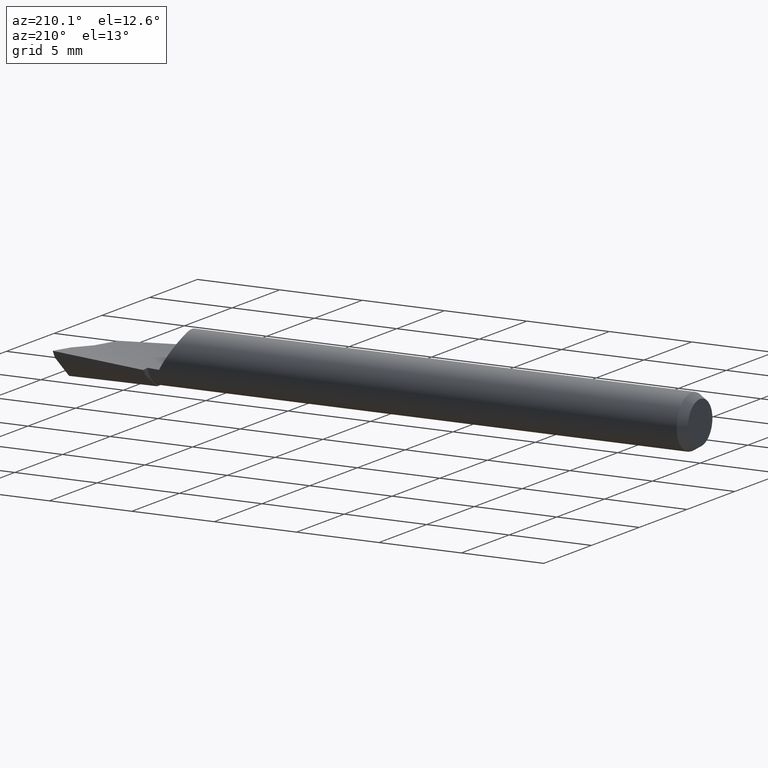
[diagram: clean part render]
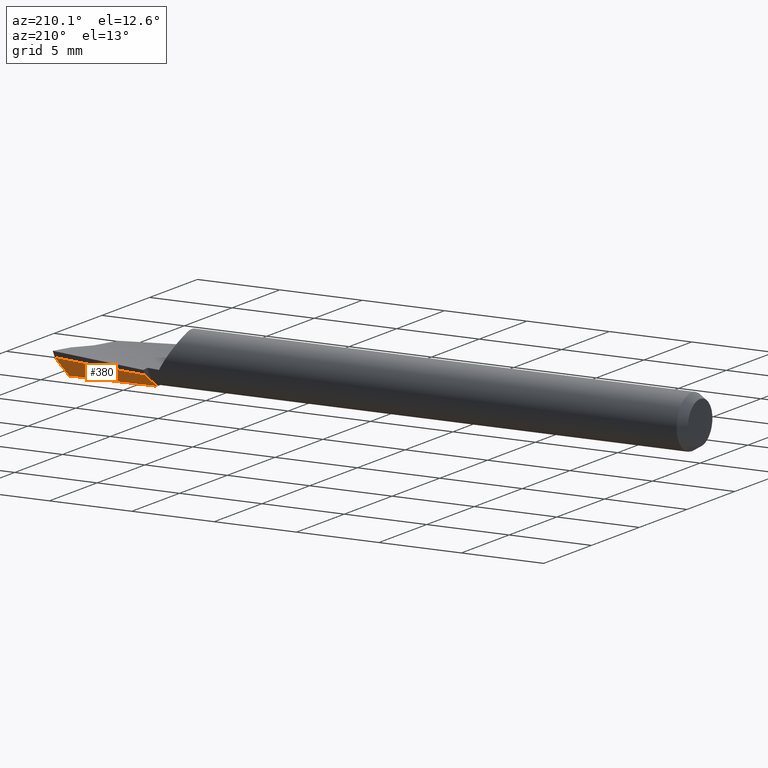
[diagram: same view with one face highlighted and labeled with its STEP entity id]
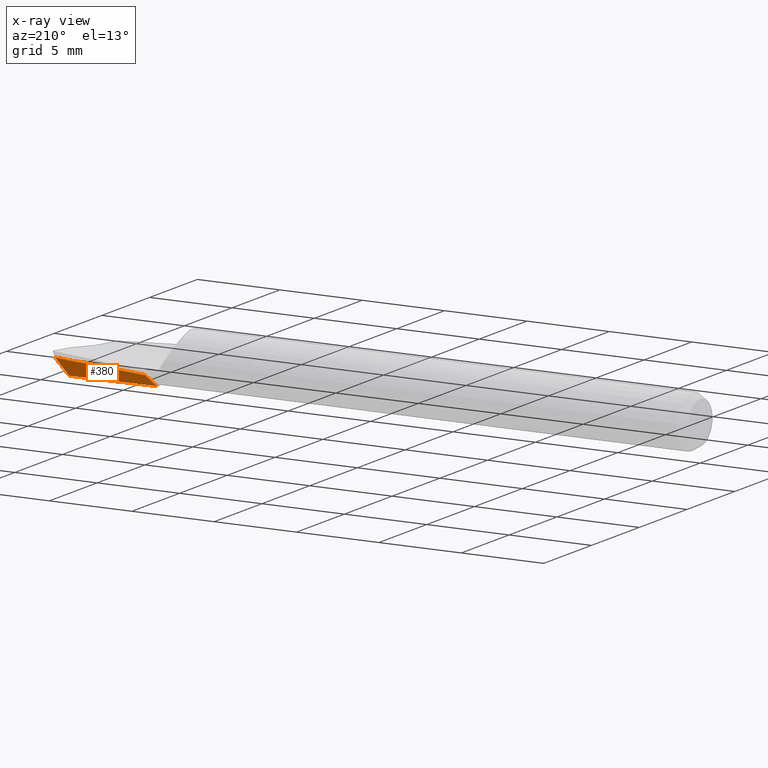
[diagram: x-ray of the same camera — body ghosted, the highlighted face saturated]
A machine part, auxiliary view. The second image highlights one B-rep face of the part: STEP entity #380.
The next image is the same camera in x-ray: the body ghosted, the highlighted face saturated — about 0% of this face is hidden behind the body in this view.
In plain terms, the highlighted face is a freeform B-spline surface patch.
Its self-contained STEP definition (entity closure, byte-faithful):
#35 = CARTESIAN_POINT ( 'NONE',  ( 1.492789826213970494, 0.03446688642667204011, -0.05544825501628470460 ) ) ;
#46 = CARTESIAN_POINT ( 'NONE',  ( 1.496935170095070156, 0.06623259381584792327, -0.02394607398065381684 ) ) ;
#51 = CARTESIAN_POINT ( 'NONE',  ( 1.495779368635660633, 0.05742269355516698565, -0.03273282644151234017 ) ) ;
#59 =( BOUNDED_CURVE ( )  B_SPLINE_CURVE ( 2, ( #408, #542, #575 ),
 .UNSPECIFIED., .F., .T. ) 
 B_SPLINE_CURVE_WITH_KNOTS ( ( 3, 3 ),
 ( 0.002800474881260479800, 0.3117378289616571374 ),
 .UNSPECIFIED. ) 
 CURVE ( )  GEOMETRIC_REPRESENTATION_ITEM ( )  RATIONAL_B_SPLINE_CURVE ( ( 0.9998628584775868244, 0.9923410090708106868, 0.9942195832789442189 ) ) 
 REPRESENTATION_ITEM ( '' )  );
#64 = CARTESIAN_POINT ( 'NONE',  ( 0.9833333333333347248, 0.06080022152004209424, -0.04802400282978503548 ) ) ;
#76 = CARTESIAN_POINT ( 'NONE',  ( 1.353962018214266427, 0.02314617646180156321, -0.06239999999999999020 ) ) ;
#96 = VERTEX_POINT ( 'NONE', #474 ) ;
#98 = CARTESIAN_POINT ( 'NONE',  ( 1.155555555555556557, -0.04100383446170217938, -0.09234900009826521594 ) ) ;
#101 = CARTESIAN_POINT ( 'NONE',  ( 1.500000000000000222, 0.07504044648600706469, -0.01500000000000001506 ) ) ;
#109 = CARTESIAN_POINT ( 'NONE',  ( 1.285000000000000142, 0.02122393214403914263, -0.06239999999999997632 ) ) ;
#121 = CARTESIAN_POINT ( 'NONE',  ( 1.422920425044222226, 0.02518942847711788668, -0.06239999999999997632 ) ) ;
#142 = FACE_OUTER_BOUND ( 'NONE', #543, .T. ) ;
#148 = CARTESIAN_POINT ( 'NONE',  ( 1.155555555555556557, 0.06673245070059055650, -0.03745462097408729790 ) ) ;
#200 = EDGE_CURVE ( 'NONE', #96, #402, #59, .T. ) ;
#212 = CARTESIAN_POINT ( 'NONE',  ( 1.491874392833614227, 0.02738142070716441737, -0.06239999999999999020 ) ) ;
#217 = EDGE_CURVE ( 'NONE', #232, #96, #287, .T. ) ;
#224 = ORIENTED_EDGE ( 'NONE', *, *, #217, .F. ) ;
#232 = VERTEX_POINT ( 'NONE', #531 ) ;
#240 = B_SPLINE_CURVE_WITH_KNOTS ( 'NONE', 3,
 ( #263, #76, #121, #212 ),
 .UNSPECIFIED., .F., .F.,
 ( 4, 4 ),
 ( 0.000000000000000000, 0.005256936623784464434 ),
 .UNSPECIFIED. ) ;
#247 = CARTESIAN_POINT ( 'NONE',  ( 1.327777777777777946, -0.02637718976660789749, -0.09884336947064184531 ) ) ;
#261 = VERTEX_POINT ( 'NONE', #534 ) ;
#263 = CARTESIAN_POINT ( 'NONE',  ( 1.285000000000000142, 0.02122393214403914263, -0.06239999999999997632 ) ) ;
#285 = CARTESIAN_POINT ( 'NONE',  ( 0.9833333333333347248, -0.05563047915679646127, -0.08585463072588858657 ) ) ;
#287 = B_SPLINE_CURVE_WITH_KNOTS ( 'NONE', 3,
 ( #493, #35, #315, #460, #51, #46, #496 ),
 .UNSPECIFIED., .F., .F.,
 ( 4, 3, 4 ),
 ( 1.779478444136748701E-05, 0.0007773853438262711768, 0.001729594564419842341 ),
 .UNSPECIFIED. ) ;
#315 = CARTESIAN_POINT ( 'NONE',  ( 1.493707277637140951, 0.04153478646506825883, -0.04847882659177697728 ) ) ;
#321 = EDGE_CURVE ( 'NONE', #261, #402, #519, .T. ) ;
#368 = CARTESIAN_POINT ( 'NONE',  ( 1.500000000000000222, -0.01045955351399199991, -0.1005000000000000060 ) ) ;
#380 = ADVANCED_FACE ( 'NONE', ( #142 ), #446, .T. ) ;
#402 = VERTEX_POINT ( 'NONE', #464 ) ;
#408 = CARTESIAN_POINT ( 'NONE',  ( 1.498094141416539626, 0.07501404401408366673, -0.01513148404725747284 ) ) ;
#415 = CARTESIAN_POINT ( 'NONE',  ( 0.8111111111111127814, 0.05189221768827641246, -0.05624292268554171442 ) ) ;
#425 = CARTESIAN_POINT ( 'NONE',  ( 1.327777777777777946, 0.07266467988113900489, -0.02688523911838956032 ) ) ;
#434 = ORIENTED_EDGE ( 'NONE', *, *, #200, .F. ) ;
#446 =( BOUNDED_SURFACE ( )  B_SPLINE_SURFACE ( 1, 2, ( 
 ( #101, #425, #148, #64, #415 ),
 ( #368, #247, #98, #285, #462 ) ),
 .UNSPECIFIED., .F., .F., .F. ) 
 B_SPLINE_SURFACE_WITH_KNOTS ( ( 2, 2 ),
 ( 3, 2, 3 ),
 ( 0.000000000000000000, 1.000000000000000000 ),
 ( 0.000000000000000000, 0.5000000000000000000, 1.000000000000000000 ),
 .UNSPECIFIED. ) 
 GEOMETRIC_REPRESENTATION_ITEM ( )  RATIONAL_B_SPLINE_SURFACE ( (
 ( 1.000000000000000000, 0.9876883405951377704, 1.000000000000000000, 0.9876883405951377704, 1.000000000000000000),
 ( 1.000000000000000000, 0.9876883405951377704, 1.000000000000000000, 0.9876883405951377704, 1.000000000000000000) ) ) 
 REPRESENTATION_ITEM ( '' )  SURFACE ( )  );
#460 = CARTESIAN_POINT ( 'NONE',  ( 1.494626743970264737, 0.04858486085059612880, -0.04149172176391202616 ) ) ;
#462 = CARTESIAN_POINT ( 'NONE',  ( 0.8111111111111127814, -0.06753437440178729212, -0.07515823663359380569 ) ) ;
#464 = CARTESIAN_POINT ( 'NONE',  ( 1.285000000000000142, 0.07068405749360198720, -0.02932290273933428962 ) ) ;
#474 = CARTESIAN_POINT ( 'NONE',  ( 1.498094141416539626, 0.07501404401408366673, -0.01513148404725747284 ) ) ;
#493 = CARTESIAN_POINT ( 'NONE',  ( 1.491874392833614227, 0.02738142070716441737, -0.06239999999999999020 ) ) ;
#496 = CARTESIAN_POINT ( 'NONE',  ( 1.498094141416539626, 0.07501404401408366673, -0.01513148404725747284 ) ) ;
#509 = CARTESIAN_POINT ( 'NONE',  ( 1.285000000000000142, 0.07068405749360198720, -0.02932290273933428962 ) ) ;
#513 = ORIENTED_EDGE ( 'NONE', *, *, #321, .T. ) ;
#519 =( BOUNDED_CURVE ( )  B_SPLINE_CURVE ( 1, ( #109, #509 ),
 .UNSPECIFIED., .F., .T. ) 
 B_SPLINE_CURVE_WITH_KNOTS ( ( 2, 2 ),
 ( 0.0008537468195487065217, 0.002365078486567901914 ),
 .UNSPECIFIED. ) 
 CURVE ( )  GEOMETRIC_REPRESENTATION_ITEM ( )  RATIONAL_B_SPLINE_CURVE ( ( 0.9942195832789444410, 0.9942195832789444410 ) ) 
 REPRESENTATION_ITEM ( '' )  );
#523 = EDGE_CURVE ( 'NONE', #261, #232, #240, .T. ) ;
#531 = CARTESIAN_POINT ( 'NONE',  ( 1.491874392833614227, 0.02738142070716441737, -0.06239999999999999020 ) ) ;
#534 = CARTESIAN_POINT ( 'NONE',  ( 1.285000000000000142, 0.02122393214403914263, -0.06239999999999997632 ) ) ;
#542 = CARTESIAN_POINT ( 'NONE',  ( 1.392152070802679331, 0.07354019347433134179, -0.02243807003139725725 ) ) ;
#543 = EDGE_LOOP ( 'NONE', ( #224, #576, #513, #434 ) ) ;
#575 = CARTESIAN_POINT ( 'NONE',  ( 1.285000000000000142, 0.07068405749360198720, -0.02932290273933428962 ) ) ;
#576 = ORIENTED_EDGE ( 'NONE', *, *, #523, .F. ) ;